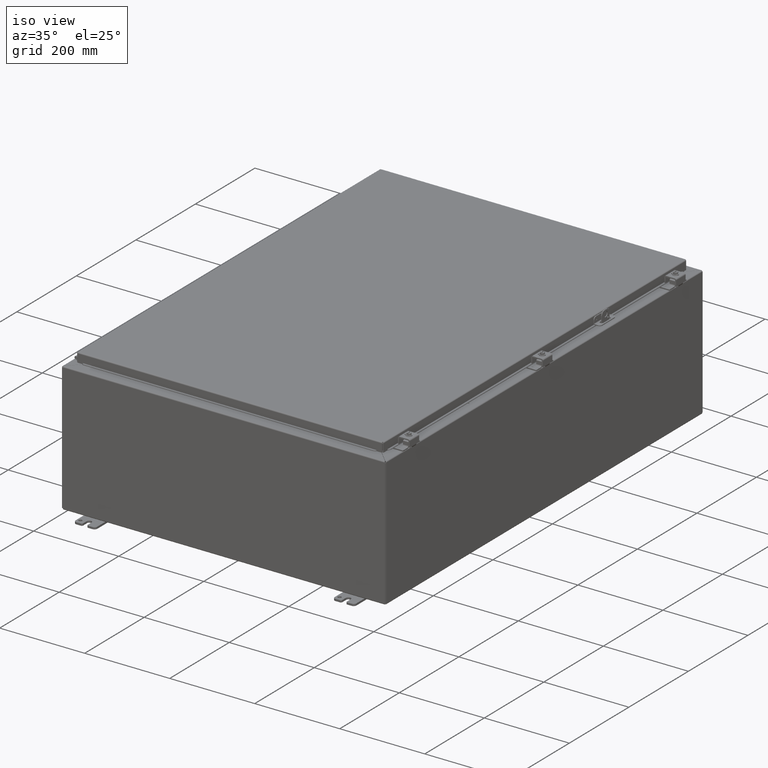
[diagram: clean part render]
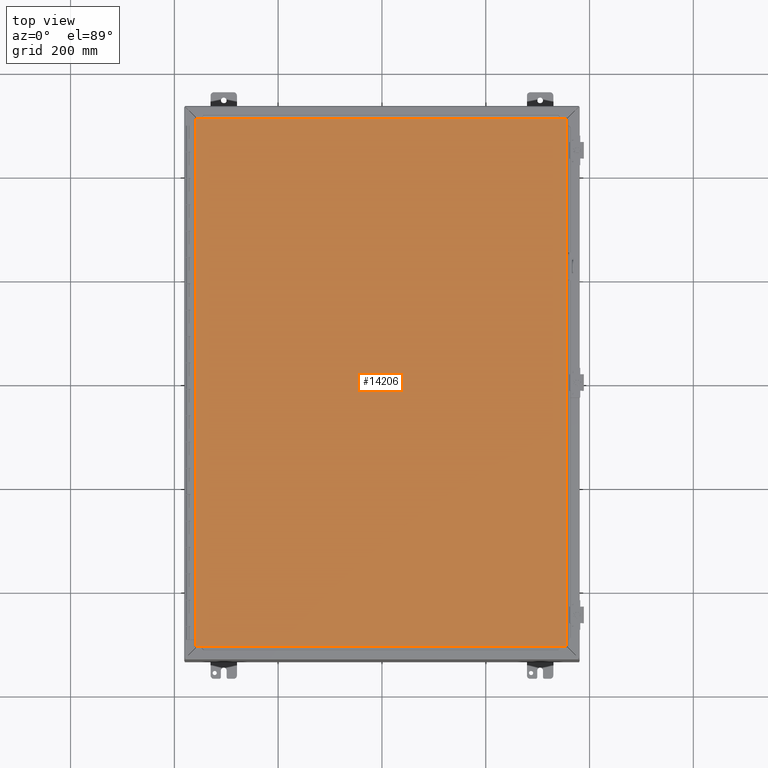
[diagram: tour spotlight — one face highlighted and labeled with its STEP entity id]
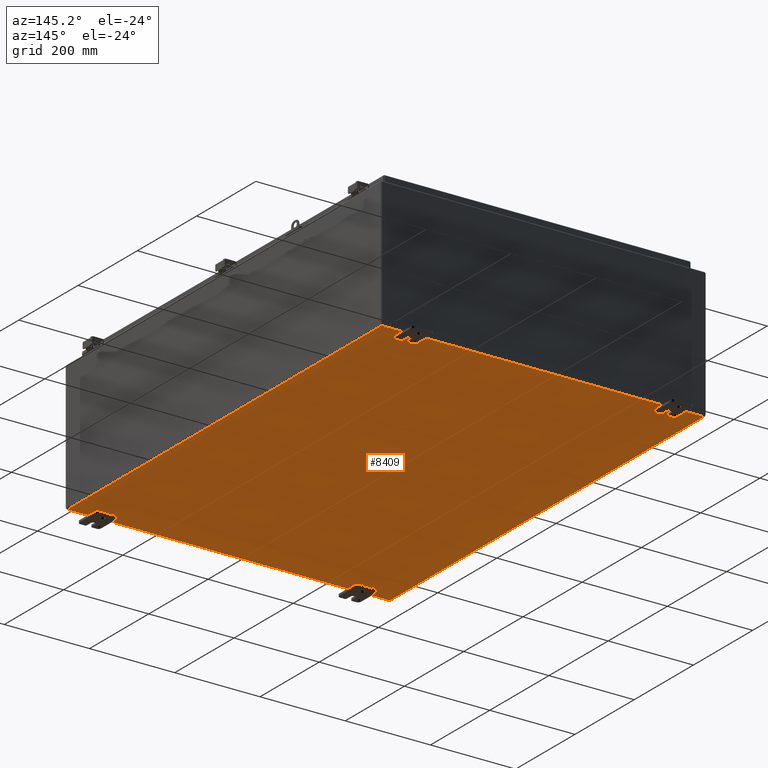
[diagram: tour spotlight — one face highlighted and labeled with its STEP entity id]
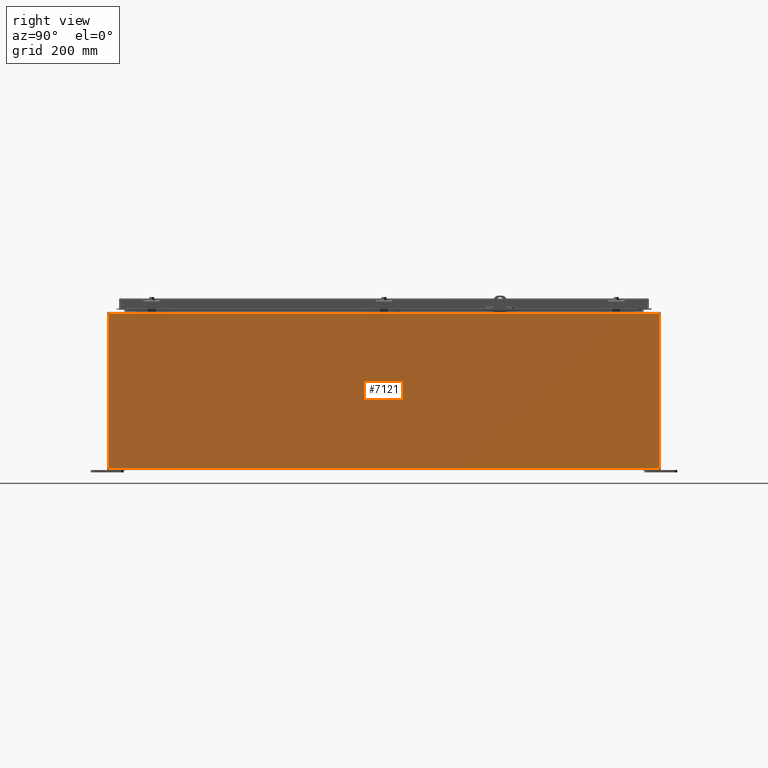
[diagram: tour spotlight — one face highlighted and labeled with its STEP entity id]
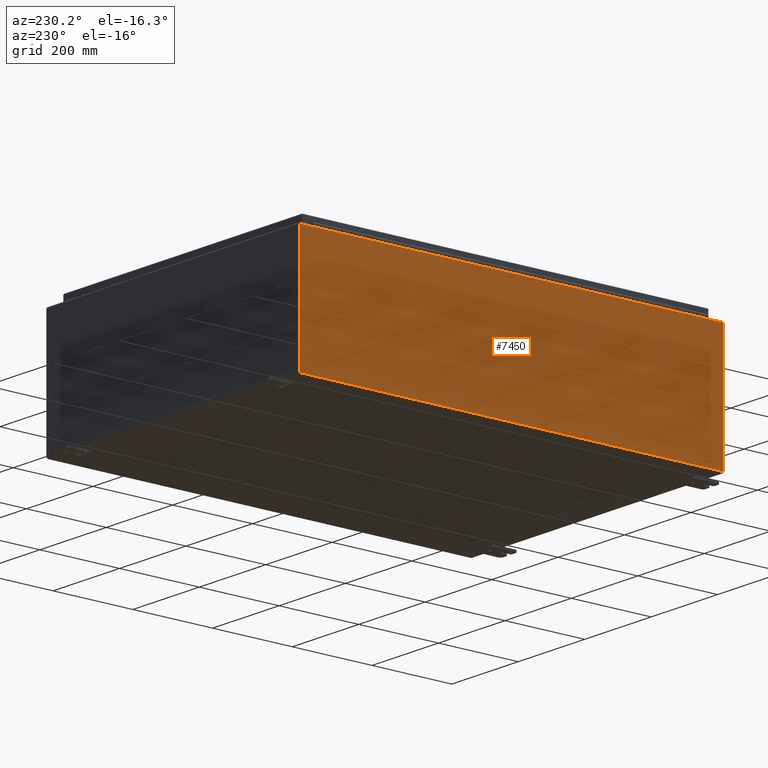
[diagram: tour spotlight — one face highlighted and labeled with its STEP entity id]
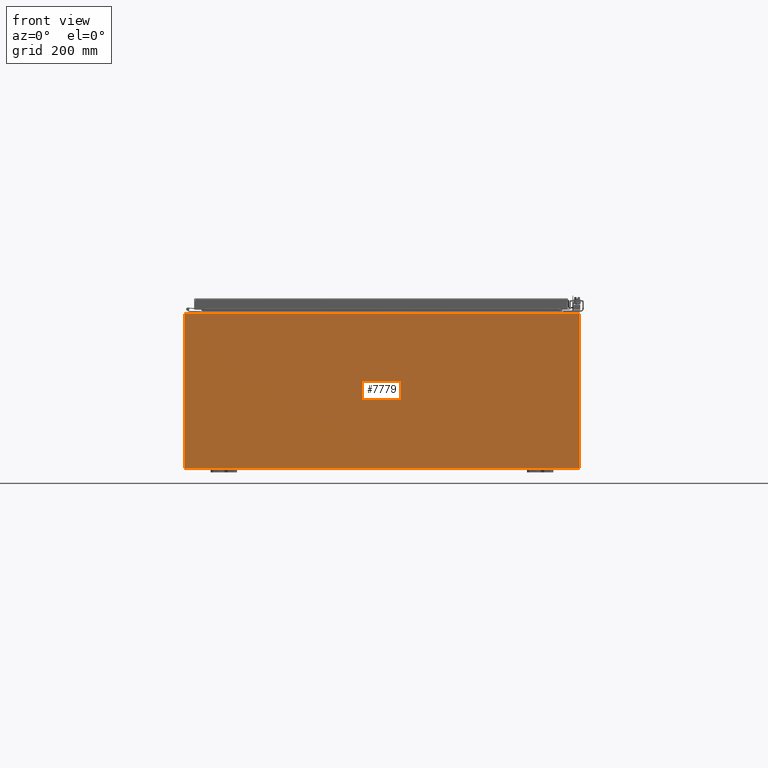
[diagram: tour spotlight — one face highlighted and labeled with its STEP entity id]
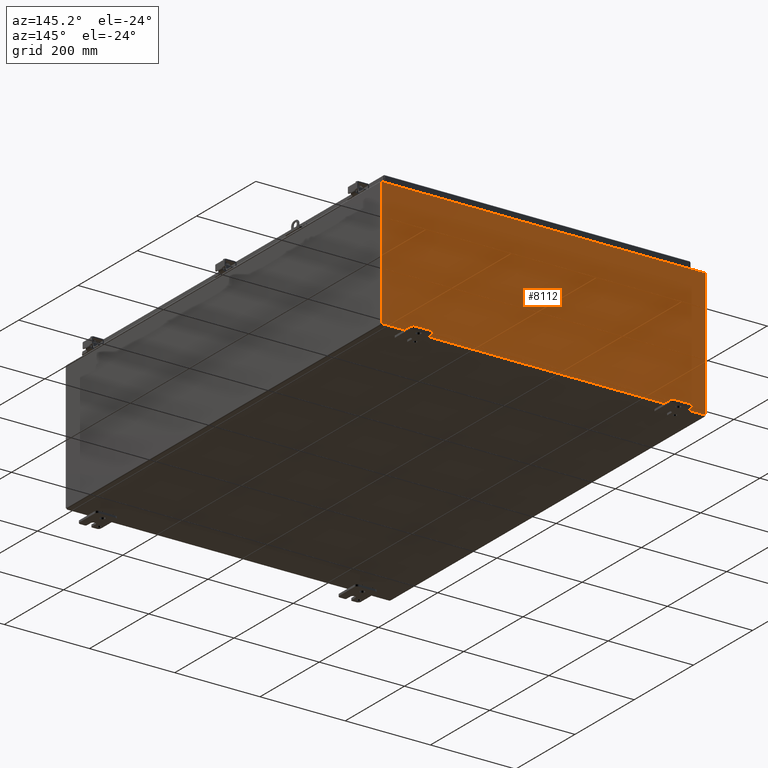
[diagram: tour spotlight — one face highlighted and labeled with its STEP entity id]
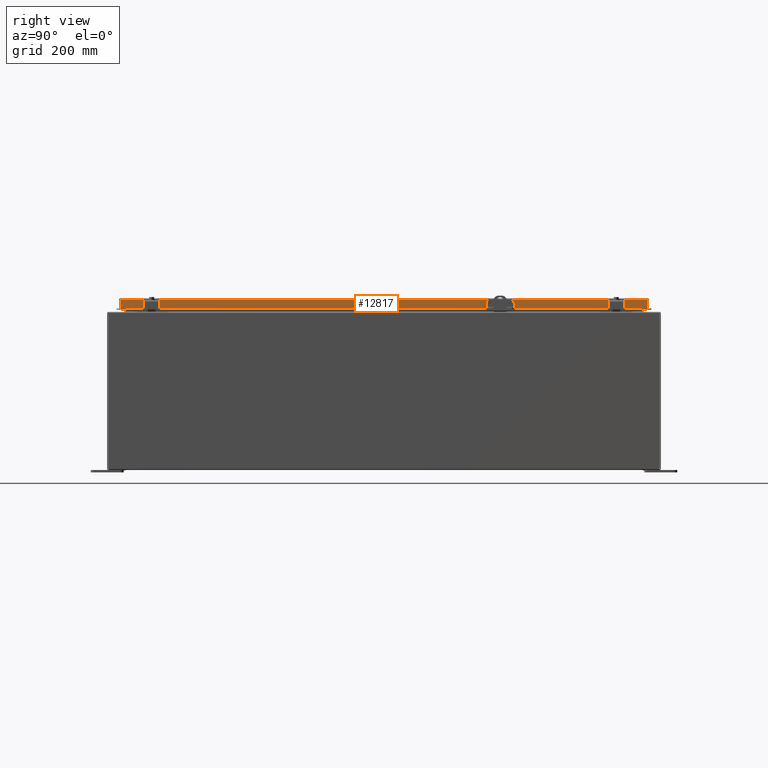
[diagram: tour spotlight — one face highlighted and labeled with its STEP entity id]
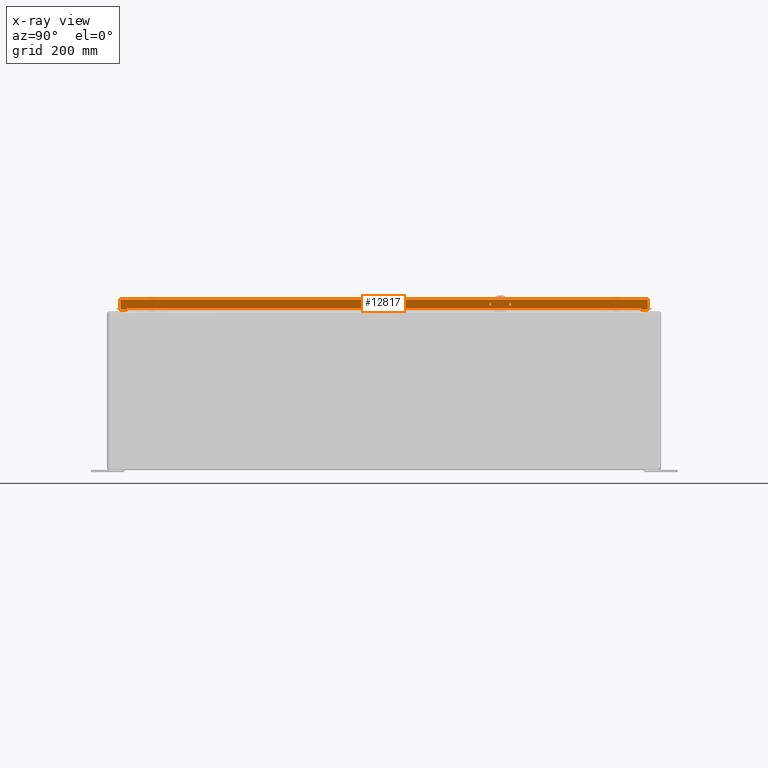
[diagram: x-ray of the same camera — body ghosted, this tour face saturated]
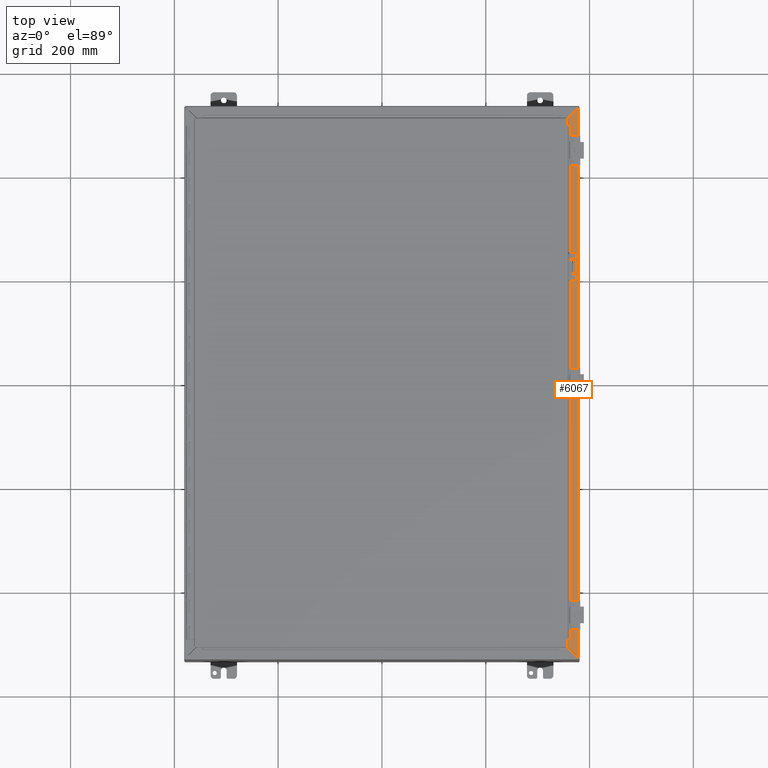
[diagram: tour spotlight — one face highlighted and labeled with its STEP entity id]
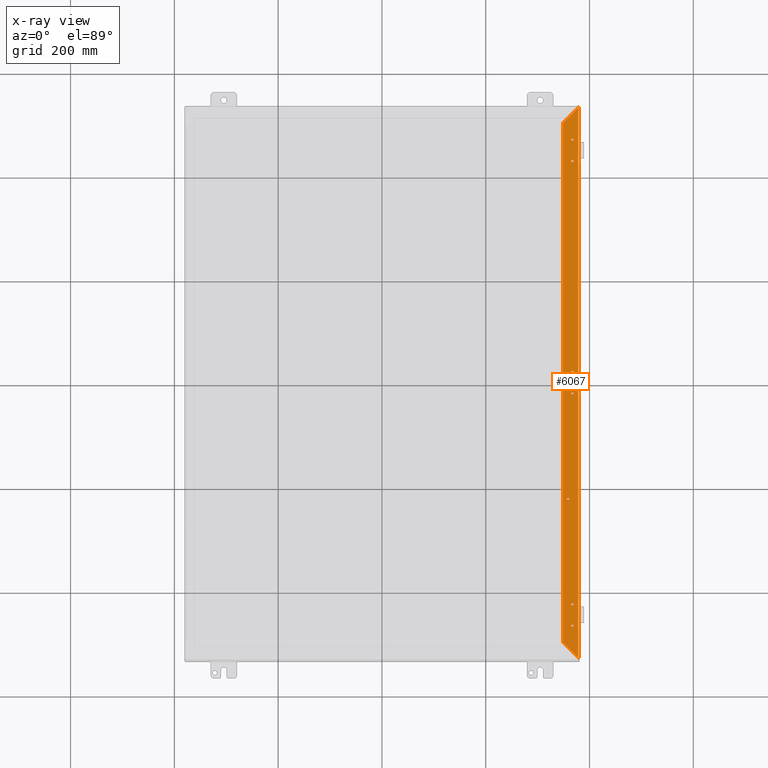
[diagram: x-ray of the same camera — body ghosted, this tour face saturated]
A machine part: a face-by-face anatomy tour. The part has 1288 B-rep faces; the first image is the clean iso view, then the 8 largest visible faces are spotlighted one at a time (largest first), each with its STEP entity span.

Face 1 — top view, entity #14206. In plain terms, the highlighted planar face has unit normal (0, -0, -1).
Definition (entity closure, byte-faithful):
#13363=CARTESIAN_POINT('',(-14.08225,-19.988500000000005,-3.278218E-017));
#13364=VERTEX_POINT('',#13363);
#13375=CARTESIAN_POINT('',(14.08225,-19.988500000000002,-1.092739E-017));
#13376=VERTEX_POINT('',#13375);
#13377=CARTESIAN_POINT('',(14.082250000000002,-19.988500000000005,0.0));
#13378=DIRECTION('',(-1.0,0.0,0.0));
#13379=VECTOR('',#13378,28.164500000000004);
#13380=LINE('',#13377,#13379);
#13381=EDGE_CURVE('',#13376,#13364,#13380,.T.);
#13497=CARTESIAN_POINT('',(-14.082250000000005,19.988500000000002,-3.278218E-017));
#13498=VERTEX_POINT('',#13497);
#13596=CARTESIAN_POINT('',(14.08225,19.988500000000002,-1.092739E-017));
#13597=VERTEX_POINT('',#13596);
#13608=CARTESIAN_POINT('',(-14.082250000000005,19.988500000000002,0.0));
#13609=DIRECTION('',(1.0,0.0,0.0));
#13610=VECTOR('',#13609,28.164500000000004);
#13611=LINE('',#13608,#13610);
#13612=EDGE_CURVE('',#13498,#13597,#13611,.T.);
#13917=CARTESIAN_POINT('',(-14.082250000000002,-19.988500000000005,0.0));
#13918=DIRECTION('',(0.0,1.0,0.0));
#13919=VECTOR('',#13918,39.977000000000011);
#13920=LINE('',#13917,#13919);
#13921=EDGE_CURVE('',#13364,#13498,#13920,.T.);
#14011=CARTESIAN_POINT('',(14.08225,19.988500000000002,0.0));
#14012=DIRECTION('',(0.0,-1.0,0.0));
#14013=VECTOR('',#14012,39.977000000000004);
#14014=LINE('',#14011,#14013);
#14015=EDGE_CURVE('',#13597,#13376,#14014,.T.);
#14195=CARTESIAN_POINT('',(0.0,-5.502907E-016,0.0));
#14196=DIRECTION('',(0.0,0.0,1.0));
#14197=DIRECTION('',(1.0,0.0,0.0));
#14198=AXIS2_PLACEMENT_3D('',#14195,#14196,#14197);
#14199=PLANE('',#14198);
#14200=ORIENTED_EDGE('',*,*,#13921,.T.);
#14201=ORIENTED_EDGE('',*,*,#13612,.T.);
#14202=ORIENTED_EDGE('',*,*,#14015,.T.);
#14203=ORIENTED_EDGE('',*,*,#13381,.T.);
#14204=EDGE_LOOP('',(#14200,#14201,#14202,#14203));
#14205=FACE_OUTER_BOUND('',#14204,.T.);
#14206=ADVANCED_FACE('',(#14205),#14199,.F.);

Face 2 — auxiliary view, entity #8409. In plain terms, the highlighted planar face has unit normal (0, 0, 1).
Definition (entity closure, byte-faithful):
#1663=CARTESIAN_POINT('',(12.424375299999996,-19.689998991866471,0.0));
#1664=VERTEX_POINT('',#1663);
#1665=CARTESIAN_POINT('',(12.484375299999996,-19.689998991866471,0.0));
#1666=DIRECTION('',(0.0,0.0,1.0));
#1667=DIRECTION('',(1.0,0.0,0.0));
#1668=AXIS2_PLACEMENT_3D('',#1665,#1666,#1667);
#1669=CIRCLE('',#1668,0.06);
#1670=EDGE_CURVE('',#1664,#1664,#1669,.T.);
#1737=CARTESIAN_POINT('',(11.455625299999998,-19.689998991866471,0.0));
#1738=VERTEX_POINT('',#1737);
#1739=CARTESIAN_POINT('',(11.515625299999998,-19.689998991866471,0.0));
#1740=DIRECTION('',(0.0,0.0,1.0));
#1741=DIRECTION('',(1.0,0.0,0.0));
#1742=AXIS2_PLACEMENT_3D('',#1739,#1740,#1741);
#1743=CIRCLE('',#1742,0.06);
#1744=EDGE_CURVE('',#1738,#1738,#1743,.T.);
#1811=CARTESIAN_POINT('',(11.781250299997273,-20.375498991872277,0.0));
#1812=VERTEX_POINT('',#1811);
#1813=CARTESIAN_POINT('',(11.841250299997274,-20.375498991872277,0.0));
#1814=DIRECTION('',(0.0,0.0,1.0));
#1815=DIRECTION('',(1.0,0.0,0.0));
#1816=AXIS2_PLACEMENT_3D('',#1813,#1814,#1815);
#1817=CIRCLE('',#1816,0.06);
#1818=EDGE_CURVE('',#1812,#1812,#1817,.T.);
#1885=CARTESIAN_POINT('',(-11.57562529999997,-19.689998991866478,0.0));
#1886=VERTEX_POINT('',#1885);
#1887=CARTESIAN_POINT('',(-11.51562529999997,-19.689998991866478,0.0));
#1888=DIRECTION('',(0.0,0.0,1.0));
#1889=DIRECTION('',(1.0,0.0,0.0));
#1890=AXIS2_PLACEMENT_3D('',#1887,#1888,#1889);
#1891=CIRCLE('',#1890,0.06);
#1892=EDGE_CURVE('',#1886,#1886,#1891,.T.);
#1959=CARTESIAN_POINT('',(-11.901250299997244,-20.375498991872284,0.0));
#1960=VERTEX_POINT('',#1959);
#1961=CARTESIAN_POINT('',(-11.841250299997244,-20.375498991872284,0.0));
#1962=DIRECTION('',(0.0,0.0,1.0));
#1963=DIRECTION('',(1.0,0.0,0.0));
#1964=AXIS2_PLACEMENT_3D('',#1961,#1962,#1963);
#1965=CIRCLE('',#1964,0.06);
#1966=EDGE_CURVE('',#1960,#1960,#1965,.T.);
#2033=CARTESIAN_POINT('',(-12.544375299999967,-19.689998991866478,0.0));
#2034=VERTEX_POINT('',#2033);
#2035=CARTESIAN_POINT('',(-12.484375299999966,-19.689998991866478,0.0));
#2036=DIRECTION('',(0.0,0.0,1.0));
#2037=DIRECTION('',(1.0,0.0,0.0));
#2038=AXIS2_PLACEMENT_3D('',#2035,#2036,#2037);
#2039=CIRCLE('',#2038,0.06);
#2040=EDGE_CURVE('',#2034,#2034,#2039,.T.);
#2107=CARTESIAN_POINT('',(-11.901250299997248,20.375498991872284,0.0));
#2108=VERTEX_POINT('',#2107);
#2109=CARTESIAN_POINT('',(-11.841250299997247,20.375498991872284,0.0));
#2110=DIRECTION('',(0.0,0.0,1.0));
#2111=DIRECTION('',(1.0,0.0,0.0));
#2112=AXIS2_PLACEMENT_3D('',#2109,#2110,#2111);
#2113=CIRCLE('',#2112,0.06);
#2114=EDGE_CURVE('',#2108,#2108,#2113,.T.);
#2181=CARTESIAN_POINT('',(-12.54437529999997,19.689998991866478,0.0));
#2182=VERTEX_POINT('',#2181);
#2183=CARTESIAN_POINT('',(-12.48437529999997,19.689998991866478,0.0));
#2184=DIRECTION('',(0.0,0.0,1.0));
#2185=DIRECTION('',(1.0,0.0,0.0));
#2186=AXIS2_PLACEMENT_3D('',#2183,#2184,#2185);
#2187=CIRCLE('',#2186,0.06);
#2188=EDGE_CURVE('',#2182,#2182,#2187,.T.);
#2255=CARTESIAN_POINT('',(-11.575625299999972,19.689998991866478,0.0));
#2256=VERTEX_POINT('',#2255);
#2257=CARTESIAN_POINT('',(-11.515625299999973,19.689998991866478,0.0));
#2258=DIRECTION('',(0.0,0.0,1.0));
#2259=DIRECTION('',(1.0,0.0,0.0));
#2260=AXIS2_PLACEMENT_3D('',#2257,#2258,#2259);
#2261=CIRCLE('',#2260,0.06);
#2262=EDGE_CURVE('',#2256,#2256,#2261,.T.);
#2329=CARTESIAN_POINT('',(11.455625299999994,19.689998991866471,0.0));
#2330=VERTEX_POINT('',#2329);
#2331=CARTESIAN_POINT('',(11.515625299999995,19.689998991866471,0.0));
#2332=DIRECTION('',(0.0,0.0,1.0));
#2333=DIRECTION('',(1.0,0.0,0.0));
#2334=AXIS2_PLACEMENT_3D('',#2331,#2332,#2333);
#2335=CIRCLE('',#2334,0.06);
#2336=EDGE_CURVE('',#2330,#2330,#2335,.T.);
#2403=CARTESIAN_POINT('',(11.78125029999727,20.375498991872277,0.0));
#2404=VERTEX_POINT('',#2403);
#2405=CARTESIAN_POINT('',(11.84125029999727,20.375498991872277,0.0));
#2406=DIRECTION('',(0.0,0.0,1.0));
#2407=DIRECTION('',(1.0,0.0,0.0));
#2408=AXIS2_PLACEMENT_3D('',#2405,#2406,#2407);
#2409=CIRCLE('',#2408,0.06);
#2410=EDGE_CURVE('',#2404,#2404,#2409,.T.);
#2477=CARTESIAN_POINT('',(12.424375299999994,19.689998991866471,0.0));
#2478=VERTEX_POINT('',#2477);
#2479=CARTESIAN_POINT('',(12.484375299999993,19.689998991866471,0.0));
#2480=DIRECTION('',(0.0,0.0,1.0));
#2481=DIRECTION('',(1.0,0.0,0.0));
#2482=AXIS2_PLACEMENT_3D('',#2479,#2480,#2481);
#2483=CIRCLE('',#2482,0.06);
#2484=EDGE_CURVE('',#2478,#2478,#2483,.T.);
#7155=CARTESIAN_POINT('',(14.894750000000004,20.882766839324358,0.0));
#7156=VERTEX_POINT('',#7155);
#7269=CARTESIAN_POINT('',(14.894750000000004,-20.882766839324372,0.0));
#7270=VERTEX_POINT('',#7269);
#7313=CARTESIAN_POINT('',(14.894750000000004,20.882766839324358,0.0));
#7314=DIRECTION('',(0.0,-1.0,0.0));
#7315=VECTOR('',#7314,41.765533678648723);
#7316=LINE('',#7313,#7315);
#7317=EDGE_CURVE('',#7156,#7270,#7316,.T.);
#7484=CARTESIAN_POINT('',(-14.894749999999995,-20.882766839324358,0.0));
#7485=VERTEX_POINT('',#7484);
#7598=CARTESIAN_POINT('',(-14.894750000000005,20.882766839324379,0.0));
#7599=VERTEX_POINT('',#7598);
#7642=CARTESIAN_POINT('',(-14.894749999999995,-20.882766839324361,0.0));
#7643=DIRECTION('',(0.0,1.0,0.0));
#7644=VECTOR('',#7643,41.765533678648737);
#7645=LINE('',#7642,#7644);
#7646=EDGE_CURVE('',#7485,#7599,#7645,.T.);
#7813=CARTESIAN_POINT('',(14.882766839324374,-20.894750000000005,0.0));
#7814=VERTEX_POINT('',#7813);
#7877=CARTESIAN_POINT('',(-14.882766839324349,-20.894750000000005,0.0));
#7878=VERTEX_POINT('',#7877);
#7892=CARTESIAN_POINT('',(14.882766839324374,-20.894750000000005,0.0));
#7893=DIRECTION('',(-1.0,0.0,0.0));
#7894=VECTOR('',#7893,29.765533678648723);
#7895=LINE('',#7892,#7894);
#7896=EDGE_CURVE('',#7814,#7878,#7895,.T.);
#8146=CARTESIAN_POINT('',(-14.882766839324379,20.894750000000005,0.0));
#8147=VERTEX_POINT('',#8146);
#8260=CARTESIAN_POINT('',(14.882766839324356,20.894750000000005,0.0));
#8261=VERTEX_POINT('',#8260);
#8304=CARTESIAN_POINT('',(-14.882766839324379,20.894750000000005,0.0));
#8305=DIRECTION('',(1.0,0.0,0.0));
#8306=VECTOR('',#8305,29.765533678648737);
#8307=LINE('',#8304,#8306);
#8308=EDGE_CURVE('',#8147,#8261,#8307,.T.);
#8321=CARTESIAN_POINT('',(-14.937891921115432,20.937891921115433,0.0));
#8322=DIRECTION('',(0.0,0.0,1.0));
#8323=DIRECTION('',(1.0,0.0,0.0));
#8324=AXIS2_PLACEMENT_3D('',#8321,#8322,#8323);
#8325=CIRCLE('',#8324,0.07);
#8326=EDGE_CURVE('',#7599,#8147,#8325,.T.);
#8340=CARTESIAN_POINT('',(0.0,2.098059E-015,0.0));
#8341=DIRECTION('',(0.0,0.0,1.0));
#8342=DIRECTION('',(1.0,0.0,0.0));
#8343=AXIS2_PLACEMENT_3D('',#8340,#8341,#8342);
#8344=PLANE('',#8343);
#8345=ORIENTED_EDGE('',*,*,#8308,.T.);
#8346=CARTESIAN_POINT('',(14.937891921115417,20.937891921115423,0.0));
#8347=DIRECTION('',(0.0,0.0,1.0));
#8348=DIRECTION('',(1.0,0.0,0.0));
#8349=AXIS2_PLACEMENT_3D('',#8346,#8347,#8348);
#8350=CIRCLE('',#8349,0.07);
#8351=EDGE_CURVE('',#8261,#7156,#8350,.T.);
#8352=ORIENTED_EDGE('',*,*,#8351,.T.);
#8353=ORIENTED_EDGE('',*,*,#7317,.T.);
#8354=CARTESIAN_POINT('',(14.937891921115432,-20.937891921115423,0.0));
#8355=DIRECTION('',(0.0,0.0,1.0));
#8356=DIRECTION('',(1.0,0.0,0.0));
#8357=AXIS2_PLACEMENT_3D('',#8354,#8355,#8356);
#8358=CIRCLE('',#8357,0.07);
#8359=EDGE_CURVE('',#7270,#7814,#8358,.T.);
#8360=ORIENTED_EDGE('',*,*,#8359,.T.);
#8361=ORIENTED_EDGE('',*,*,#7896,.T.);
#8362=CARTESIAN_POINT('',(-14.937891921115408,-20.937891921115423,0.0));
#8363=DIRECTION('',(0.0,0.0,1.0));
#8364=DIRECTION('',(1.0,0.0,0.0));
#8365=AXIS2_PLACEMENT_3D('',#8362,#8363,#8364);
#8366=CIRCLE('',#8365,0.07);
#8367=EDGE_CURVE('',#7878,#7485,#8366,.T.);
#8368=ORIENTED_EDGE('',*,*,#8367,.T.);
#8369=ORIENTED_EDGE('',*,*,#7646,.T.);
#8370=ORIENTED_EDGE('',*,*,#8326,.T.);
#8371=EDGE_LOOP('',(#8345,#8352,#8353,#8360,#8361,#8368,#8369,#8370));
#8372=FACE_OUTER_BOUND('',#8371,.T.);
#8373=ORIENTED_EDGE('',*,*,#1670,.T.);
#8374=EDGE_LOOP('',(#8373));
#8375=FACE_BOUND('',#8374,.T.);
#8376=ORIENTED_EDGE('',*,*,#1744,.T.);
#8377=EDGE_LOOP('',(#8376));
#8378=FACE_BOUND('',#8377,.T.);
#8379=ORIENTED_EDGE('',*,*,#1818,.T.);
#8380=EDGE_LOOP('',(#8379));
#8381=FACE_BOUND('',#8380,.T.);
#8382=ORIENTED_EDGE('',*,*,#1892,.T.);
#8383=EDGE_LOOP('',(#8382));
#8384=FACE_BOUND('',#8383,.T.);
#8385=ORIENTED_EDGE('',*,*,#1966,.T.);
#8386=EDGE_LOOP('',(#8385));
#8387=FACE_BOUND('',#8386,.T.);
#8388=ORIENTED_EDGE('',*,*,#2040,.T.);
#8389=EDGE_LOOP('',(#8388));
#8390=FACE_BOUND('',#8389,.T.);
#8391=ORIENTED_EDGE('',*,*,#2114,.T.);
#8392=EDGE_LOOP('',(#8391));
#8393=FACE_BOUND('',#8392,.T.);
#8394=ORIENTED_EDGE('',*,*,#2188,.T.);
#8395=EDGE_LOOP('',(#8394));
#8396=FACE_BOUND('',#8395,.T.);
#8397=ORIENTED_EDGE('',*,*,#2262,.T.);
#8398=EDGE_LOOP('',(#8397));
#8399=FACE_BOUND('',#8398,.T.);
#8400=ORIENTED_EDGE('',*,*,#2336,.T.);
#8401=EDGE_LOOP('',(#8400));
#8402=FACE_BOUND('',#8401,.T.);
#8403=ORIENTED_EDGE('',*,*,#2410,.T.);
#8404=EDGE_LOOP('',(#8403));
#8405=FACE_BOUND('',#8404,.T.);
#8406=ORIENTED_EDGE('',*,*,#2484,.T.);
#8407=EDGE_LOOP('',(#8406));
#8408=FACE_BOUND('',#8407,.T.);
#8409=ADVANCED_FACE('',(#8372,#8375,#8378,#8381,#8384,#8387,#8390,#8393,#8396,#8399,#8402,#8405,#8408),#8344,.F.);

Face 3 — right view, entity #7121. In plain terms, the highlighted planar face has unit normal (-1, 0, 0).
Definition (entity closure, byte-faithful):
#6126=CARTESIAN_POINT('',(15.000000000000055,20.914951456544024,11.89475));
#6127=VERTEX_POINT('',#6126);
#6159=CARTESIAN_POINT('',(15.000000000000066,-20.914951456544028,11.894750000000014));
#6160=VERTEX_POINT('',#6159);
#6174=CARTESIAN_POINT('',(15.000000000000059,20.914951456544024,11.894749999999998));
#6175=DIRECTION('',(0.0,-1.0,0.0));
#6176=VECTOR('',#6175,41.829902913088056);
#6177=LINE('',#6174,#6176);
#6178=EDGE_CURVE('',#6127,#6160,#6177,.T.);
#6667=CARTESIAN_POINT('',(15.000000000000069,-20.921000000000006,11.894750000000014));
#6668=VERTEX_POINT('',#6667);
#6675=CARTESIAN_POINT('',(15.000000000000068,-20.914951456544031,11.894750000000013));
#6676=DIRECTION('',(0.0,-1.0,0.0));
#6677=VECTOR('',#6676,0.006048543455968);
#6678=LINE('',#6675,#6677);
#6679=EDGE_CURVE('',#6160,#6668,#6678,.T.);
#6938=CARTESIAN_POINT('',(15.000000000000057,20.920999999999999,11.89475));
#6939=VERTEX_POINT('',#6938);
#6940=CARTESIAN_POINT('',(15.000000000000059,20.920999999999999,11.894749999999998));
#6941=DIRECTION('',(0.0,-1.0,0.0));
#6942=VECTOR('',#6941,0.006048543455975);
#6943=LINE('',#6940,#6942);
#6944=EDGE_CURVE('',#6939,#6127,#6943,.T.);
#6969=CARTESIAN_POINT('',(14.999999999999996,20.921000000000003,0.1300393897878));
#6970=VERTEX_POINT('',#6969);
#6971=CARTESIAN_POINT('',(14.999999999999453,20.921000000000006,11.89475));
#6972=DIRECTION('',(0.0,0.0,-1.0));
#6973=VECTOR('',#6972,11.7647106102122);
#6974=LINE('',#6971,#6973);
#6975=EDGE_CURVE('',#6939,#6970,#6974,.T.);
#7009=CARTESIAN_POINT('',(14.999999999999998,-20.882766839324365,0.105249999999998));
#7010=VERTEX_POINT('',#7009);
#7017=CARTESIAN_POINT('',(14.999999999999998,-20.921000000000003,0.130039389787809));
#7018=VERTEX_POINT('',#7017);
#7019=CARTESIAN_POINT('',(14.999999999999998,-20.937891921115426,0.062108078884587));
#7020=DIRECTION('',(-1.0,0.0,0.0));
#7021=DIRECTION('',(0.0,0.0,1.0));
#7022=AXIS2_PLACEMENT_3D('',#7019,#7020,#7021);
#7023=CIRCLE('',#7022,0.07);
#7024=EDGE_CURVE('',#7018,#7010,#7023,.T.);
#7088=CARTESIAN_POINT('',(15.00000000000003,-7.416651E-016,6.009483078884587));
#7089=DIRECTION('',(-1.0,0.0,0.0));
#7090=DIRECTION('',(0.0,0.0,1.0));
#7091=AXIS2_PLACEMENT_3D('',#7088,#7089,#7090);
#7092=PLANE('',#7091);
#7093=ORIENTED_EDGE('',*,*,#6944,.T.);
#7094=ORIENTED_EDGE('',*,*,#6178,.T.);
#7095=ORIENTED_EDGE('',*,*,#6679,.T.);
#7096=CARTESIAN_POINT('',(15.000000000000004,-20.921000000000003,0.130039389787809));
#7097=DIRECTION('',(0.0,0.0,1.0));
#7098=VECTOR('',#7097,11.764710610212205);
#7099=LINE('',#7096,#7098);
#7100=EDGE_CURVE('',#7018,#6668,#7099,.T.);
#7101=ORIENTED_EDGE('',*,*,#7100,.F.);
#7102=ORIENTED_EDGE('',*,*,#7024,.T.);
#7103=CARTESIAN_POINT('',(14.999999999999996,20.882766839324365,0.105249999999998));
#7104=VERTEX_POINT('',#7103);
#7105=CARTESIAN_POINT('',(15.000000000000002,-20.882766839324365,0.105249999999998));
#7106=DIRECTION('',(0.0,1.0,0.0));
#7107=VECTOR('',#7106,41.76553367864873);
#7108=LINE('',#7105,#7107);
#7109=EDGE_CURVE('',#7010,#7104,#7108,.T.);
#7110=ORIENTED_EDGE('',*,*,#7109,.T.);
#7111=CARTESIAN_POINT('',(14.999999999999996,20.937891921115423,0.062108078884576));
#7112=DIRECTION('',(-1.0,0.0,0.0));
#7113=DIRECTION('',(0.0,0.0,1.0));
#7114=AXIS2_PLACEMENT_3D('',#7111,#7112,#7113);
#7115=CIRCLE('',#7114,0.07);
#7116=EDGE_CURVE('',#7104,#6970,#7115,.T.);
#7117=ORIENTED_EDGE('',*,*,#7116,.T.);
#7118=ORIENTED_EDGE('',*,*,#6975,.F.);
#7119=EDGE_LOOP('',(#7093,#7094,#7095,#7101,#7102,#7110,#7117,#7118));
#7120=FACE_OUTER_BOUND('',#7119,.T.);
#7121=ADVANCED_FACE('',(#7120),#7092,.F.);

Face 4 — auxiliary view, entity #7450. In plain terms, the highlighted planar face has unit normal (1, 0, 0).
Definition (entity closure, byte-faithful):
#5889=CARTESIAN_POINT('',(-15.000000000000052,-20.914951456544035,11.894750000000004));
#5890=VERTEX_POINT('',#5889);
#5922=CARTESIAN_POINT('',(-15.000000000000066,20.914951456544031,11.894750000000014));
#5923=VERTEX_POINT('',#5922);
#5937=CARTESIAN_POINT('',(-15.000000000000052,-20.914951456544038,11.894750000000004));
#5938=DIRECTION('',(0.0,1.0,0.0));
#5939=VECTOR('',#5938,41.829902913088063);
#5940=LINE('',#5937,#5939);
#5941=EDGE_CURVE('',#5890,#5923,#5940,.T.);
#6636=CARTESIAN_POINT('',(-15.000000000000069,20.921000000000006,11.894750000000014));
#6637=VERTEX_POINT('',#6636);
#6644=CARTESIAN_POINT('',(-15.000000000000064,20.914951456544028,11.894750000000016));
#6645=DIRECTION('',(0.0,1.0,0.0));
#6646=VECTOR('',#6645,0.006048543455979);
#6647=LINE('',#6644,#6646);
#6648=EDGE_CURVE('',#5923,#6637,#6647,.T.);
#6814=CARTESIAN_POINT('',(-15.000000000000057,-20.920999999999999,11.894750000000002));
#6815=VERTEX_POINT('',#6814);
#6816=CARTESIAN_POINT('',(-15.000000000000052,-20.920999999999999,11.894750000000004));
#6817=DIRECTION('',(0.0,1.0,0.0));
#6818=VECTOR('',#6817,0.006048543455961);
#6819=LINE('',#6816,#6818);
#6820=EDGE_CURVE('',#6815,#5890,#6819,.T.);
#6845=CARTESIAN_POINT('',(-14.999999999999989,-20.921000000000006,0.130039389787803));
#6846=VERTEX_POINT('',#6845);
#6847=CARTESIAN_POINT('',(-15.000000000000052,-20.92100000000001,11.894750000000004));
#6848=DIRECTION('',(0.0,0.0,-1.0));
#6849=VECTOR('',#6848,11.7647106102122);
#6850=LINE('',#6847,#6849);
#6851=EDGE_CURVE('',#6815,#6846,#6850,.T.);
#7338=CARTESIAN_POINT('',(-14.999999999999998,20.882766839324365,0.105250000000001));
#7339=VERTEX_POINT('',#7338);
#7346=CARTESIAN_POINT('',(-15.000000000000002,20.920999999999999,0.130039389787811));
#7347=VERTEX_POINT('',#7346);
#7348=CARTESIAN_POINT('',(-14.999999999999998,20.937891921115433,0.06210807888459));
#7349=DIRECTION('',(1.0,0.0,0.0));
#7350=DIRECTION('',(0.0,0.0,-1.0));
#7351=AXIS2_PLACEMENT_3D('',#7348,#7349,#7350);
#7352=CIRCLE('',#7351,0.07);
#7353=EDGE_CURVE('',#7347,#7339,#7352,.T.);
#7417=CARTESIAN_POINT('',(-15.000000000000027,-2.628164E-015,6.009483078884587));
#7418=DIRECTION('',(1.0,0.0,0.0));
#7419=DIRECTION('',(0.0,0.0,-1.0));
#7420=AXIS2_PLACEMENT_3D('',#7417,#7418,#7419);
#7421=PLANE('',#7420);
#7422=ORIENTED_EDGE('',*,*,#6820,.T.);
#7423=ORIENTED_EDGE('',*,*,#5941,.T.);
#7424=ORIENTED_EDGE('',*,*,#6648,.T.);
#7425=CARTESIAN_POINT('',(-14.999999999999998,20.921000000000003,0.130039389787811));
#7426=DIRECTION('',(0.0,0.0,1.0));
#7427=VECTOR('',#7426,11.764710610212203);
#7428=LINE('',#7425,#7427);
#7429=EDGE_CURVE('',#7347,#6637,#7428,.T.);
#7430=ORIENTED_EDGE('',*,*,#7429,.F.);
#7431=ORIENTED_EDGE('',*,*,#7353,.T.);
#7432=CARTESIAN_POINT('',(-14.999999999999988,-20.882766839324365,0.105250000000001));
#7433=VERTEX_POINT('',#7432);
#7434=CARTESIAN_POINT('',(-15.000000000000002,20.882766839324365,0.105250000000001));
#7435=DIRECTION('',(0.0,-1.0,0.0));
#7436=VECTOR('',#7435,41.765533678648737);
#7437=LINE('',#7434,#7436);
#7438=EDGE_CURVE('',#7339,#7433,#7437,.T.);
#7439=ORIENTED_EDGE('',*,*,#7438,.T.);
#7440=CARTESIAN_POINT('',(-14.999999999999988,-20.937891921115423,0.062108078884578));
#7441=DIRECTION('',(1.0,0.0,0.0));
#7442=DIRECTION('',(0.0,0.0,-1.0));
#7443=AXIS2_PLACEMENT_3D('',#7440,#7441,#7442);
#7444=CIRCLE('',#7443,0.07);
#7445=EDGE_CURVE('',#7433,#6846,#7444,.T.);
#7446=ORIENTED_EDGE('',*,*,#7445,.T.);
#7447=ORIENTED_EDGE('',*,*,#6851,.F.);
#7448=EDGE_LOOP('',(#7422,#7423,#7424,#7430,#7431,#7439,#7446,#7447));
#7449=FACE_OUTER_BOUND('',#7448,.T.);
#7450=ADVANCED_FACE('',(#7449),#7421,.F.);

Face 5 — front view, entity #7779. In plain terms, the highlighted planar face has unit normal (0, 1, 0).
Definition (entity closure, byte-faithful):
#6321=CARTESIAN_POINT('',(14.914951456544026,-21.00000000000006,11.894750000000005));
#6322=VERTEX_POINT('',#6321);
#6354=CARTESIAN_POINT('',(-14.914951456544014,-21.000000000000071,11.894750000000002));
#6355=VERTEX_POINT('',#6354);
#6369=CARTESIAN_POINT('',(14.914951456544028,-21.000000000000068,11.894750000000005));
#6370=DIRECTION('',(-1.0,0.0,0.0));
#6371=VECTOR('',#6370,29.829902913088041);
#6372=LINE('',#6369,#6371);
#6373=EDGE_CURVE('',#6322,#6355,#6372,.T.);
#6698=CARTESIAN_POINT('',(-14.962999999999997,-21.000000000000068,11.894750000000002));
#6699=VERTEX_POINT('',#6698);
#6706=CARTESIAN_POINT('',(-14.914951456544012,-21.000000000000078,11.894750000000004));
#6707=DIRECTION('',(-1.0,0.0,0.0));
#6708=VECTOR('',#6707,0.048048543455987);
#6709=LINE('',#6706,#6708);
#6710=EDGE_CURVE('',#6355,#6699,#6709,.T.);
#6876=CARTESIAN_POINT('',(14.963000000000001,-21.000000000000057,11.894750000000005));
#6877=VERTEX_POINT('',#6876);
#6878=CARTESIAN_POINT('',(14.963000000000001,-21.000000000000068,11.894750000000005));
#6879=DIRECTION('',(-1.0,0.0,0.0));
#6880=VECTOR('',#6879,0.048048543455973);
#6881=LINE('',#6878,#6880);
#6882=EDGE_CURVE('',#6877,#6322,#6881,.T.);
#6907=CARTESIAN_POINT('',(14.962999999999996,-21.000000000000007,0.127450135591774));
#6908=VERTEX_POINT('',#6907);
#6909=CARTESIAN_POINT('',(14.962999999999996,-20.99999999999946,11.894750000000007));
#6910=DIRECTION('',(0.0,0.0,-1.0));
#6911=VECTOR('',#6910,11.767299864408233);
#6912=LINE('',#6909,#6911);
#6913=EDGE_CURVE('',#6877,#6908,#6912,.T.);
#7711=CARTESIAN_POINT('',(-14.882766839324363,-21.000000000000007,0.105250000000001));
#7712=VERTEX_POINT('',#7711);
#7719=CARTESIAN_POINT('',(-14.963000000000003,-21.000000000000007,0.127450135591766));
#7720=VERTEX_POINT('',#7719);
#7721=CARTESIAN_POINT('',(-14.937891921115417,-21.000000000000007,0.062108078884578));
#7722=DIRECTION('',(0.0,1.0,0.0));
#7723=DIRECTION('',(1.0,0.0,0.0));
#7724=AXIS2_PLACEMENT_3D('',#7721,#7722,#7723);
#7725=CIRCLE('',#7724,0.07);
#7726=EDGE_CURVE('',#7720,#7712,#7725,.T.);
#7746=CARTESIAN_POINT('',(-2.646843E-015,-21.000000000000039,6.009483078884579));
#7747=DIRECTION('',(0.0,1.0,0.0));
#7748=DIRECTION('',(1.0,0.0,0.0));
#7749=AXIS2_PLACEMENT_3D('',#7746,#7747,#7748);
#7750=PLANE('',#7749);
#7751=ORIENTED_EDGE('',*,*,#6882,.T.);
#7752=ORIENTED_EDGE('',*,*,#6373,.T.);
#7753=ORIENTED_EDGE('',*,*,#6710,.T.);
#7754=CARTESIAN_POINT('',(-14.962999999999997,-21.000000000000011,0.127450135591766));
#7755=DIRECTION('',(0.0,0.0,1.0));
#7756=VECTOR('',#7755,11.767299864408237);
#7757=LINE('',#7754,#7756);
#7758=EDGE_CURVE('',#7720,#6699,#7757,.T.);
#7759=ORIENTED_EDGE('',*,*,#7758,.F.);
#7760=ORIENTED_EDGE('',*,*,#7726,.T.);
#7761=CARTESIAN_POINT('',(14.882766839324374,-21.000000000000007,0.105250000000001));
#7762=VERTEX_POINT('',#7761);
#7763=CARTESIAN_POINT('',(-14.882766839324363,-21.000000000000011,0.105250000000001));
#7764=DIRECTION('',(1.0,0.0,0.0));
#7765=VECTOR('',#7764,29.765533678648737);
#7766=LINE('',#7763,#7765);
#7767=EDGE_CURVE('',#7712,#7762,#7766,.T.);
#7768=ORIENTED_EDGE('',*,*,#7767,.T.);
#7769=CARTESIAN_POINT('',(14.937891921115432,-21.000000000000007,0.062108078884578));
#7770=DIRECTION('',(0.0,1.0,0.0));
#7771=DIRECTION('',(1.0,0.0,0.0));
#7772=AXIS2_PLACEMENT_3D('',#7769,#7770,#7771);
#7773=CIRCLE('',#7772,0.07);
#7774=EDGE_CURVE('',#7762,#6908,#7773,.T.);
#7775=ORIENTED_EDGE('',*,*,#7774,.T.);
#7776=ORIENTED_EDGE('',*,*,#6913,.F.);
#7777=EDGE_LOOP('',(#7751,#7752,#7753,#7759,#7760,#7768,#7775,#7776));
#7778=FACE_OUTER_BOUND('',#7777,.T.);
#7779=ADVANCED_FACE('',(#7778),#7750,.F.);

Face 6 — auxiliary view, entity #8112. In plain terms, the highlighted planar face has unit normal (0, -1, 0).
Definition (entity closure, byte-faithful):
#6512=CARTESIAN_POINT('',(-14.914951456544024,21.00000000000006,11.894750000000002));
#6513=VERTEX_POINT('',#6512);
#6542=CARTESIAN_POINT('',(14.914951456544015,21.00000000000006,11.894750000000002));
#6543=VERTEX_POINT('',#6542);
#6557=CARTESIAN_POINT('',(-14.914951456544024,21.000000000000068,11.894750000000002));
#6558=DIRECTION('',(1.0,0.0,0.0));
#6559=VECTOR('',#6558,29.829902913088041);
#6560=LINE('',#6557,#6559);
#6561=EDGE_CURVE('',#6513,#6543,#6560,.T.);
#6729=CARTESIAN_POINT('',(14.963000000000006,21.000000000000064,11.894750000000002));
#6730=VERTEX_POINT('',#6729);
#6737=CARTESIAN_POINT('',(14.914951456544015,21.000000000000068,11.894750000000002));
#6738=DIRECTION('',(1.0,0.0,0.0));
#6739=VECTOR('',#6738,0.048048543455991);
#6740=LINE('',#6737,#6739);
#6741=EDGE_CURVE('',#6543,#6730,#6740,.T.);
#6752=CARTESIAN_POINT('',(-14.963000000000003,21.000000000000064,11.894750000000002));
#6753=VERTEX_POINT('',#6752);
#6754=CARTESIAN_POINT('',(-14.963000000000005,21.000000000000068,11.894750000000002));
#6755=DIRECTION('',(1.0,0.0,0.0));
#6756=VECTOR('',#6755,0.04804854345598);
#6757=LINE('',#6754,#6756);
#6758=EDGE_CURVE('',#6753,#6513,#6757,.T.);
#6783=CARTESIAN_POINT('',(-14.962999999999997,21.000000000000007,0.127450135591771));
#6784=VERTEX_POINT('',#6783);
#6785=CARTESIAN_POINT('',(-14.962999999999997,21.000000000000071,11.894750000000004));
#6786=DIRECTION('',(0.0,0.0,-1.0));
#6787=VECTOR('',#6786,11.767299864408232);
#6788=LINE('',#6785,#6787);
#6789=EDGE_CURVE('',#6753,#6784,#6788,.T.);
#7996=CARTESIAN_POINT('',(14.882766839324368,21.000000000000007,0.105250000000001));
#7997=VERTEX_POINT('',#7996);
#8004=CARTESIAN_POINT('',(14.963000000000012,21.000000000000007,0.127450135591766));
#8005=VERTEX_POINT('',#8004);
#8006=CARTESIAN_POINT('',(14.937891921115423,21.000000000000007,0.062108078884578));
#8007=DIRECTION('',(0.0,-1.0,0.0));
#8008=DIRECTION('',(1.0,0.0,0.0));
#8009=AXIS2_PLACEMENT_3D('',#8006,#8007,#8008);
#8010=CIRCLE('',#8009,0.07);
#8011=EDGE_CURVE('',#8005,#7997,#8010,.T.);
#8079=CARTESIAN_POINT('',(5.245148E-015,21.000000000000036,6.009483078884579));
#8080=DIRECTION('',(0.0,-1.0,0.0));
#8081=DIRECTION('',(1.0,0.0,0.0));
#8082=AXIS2_PLACEMENT_3D('',#8079,#8080,#8081);
#8083=PLANE('',#8082);
#8084=ORIENTED_EDGE('',*,*,#6758,.T.);
#8085=ORIENTED_EDGE('',*,*,#6561,.T.);
#8086=ORIENTED_EDGE('',*,*,#6741,.T.);
#8087=CARTESIAN_POINT('',(14.963000000000006,21.000000000000007,0.127450135591766));
#8088=DIRECTION('',(0.0,0.0,1.0));
#8089=VECTOR('',#8088,11.767299864408239);
#8090=LINE('',#8087,#8089);
#8091=EDGE_CURVE('',#8005,#6730,#8090,.T.);
#8092=ORIENTED_EDGE('',*,*,#8091,.F.);
#8093=ORIENTED_EDGE('',*,*,#8011,.T.);
#8094=CARTESIAN_POINT('',(-14.88276683932437,21.000000000000007,0.105250000000001));
#8095=VERTEX_POINT('',#8094);
#8096=CARTESIAN_POINT('',(14.88276683932437,21.000000000000007,0.105250000000001));
#8097=DIRECTION('',(-1.0,0.0,0.0));
#8098=VECTOR('',#8097,29.765533678648737);
#8099=LINE('',#8096,#8098);
#8100=EDGE_CURVE('',#7997,#8095,#8099,.T.);
#8101=ORIENTED_EDGE('',*,*,#8100,.T.);
#8102=CARTESIAN_POINT('',(-14.937891921115426,21.000000000000007,0.062108078884578));
#8103=DIRECTION('',(0.0,-1.0,0.0));
#8104=DIRECTION('',(1.0,0.0,0.0));
#8105=AXIS2_PLACEMENT_3D('',#8102,#8103,#8104);
#8106=CIRCLE('',#8105,0.07);
#8107=EDGE_CURVE('',#8095,#6784,#8106,.T.);
#8108=ORIENTED_EDGE('',*,*,#8107,.T.);
#8109=ORIENTED_EDGE('',*,*,#6789,.F.);
#8110=EDGE_LOOP('',(#8084,#8085,#8086,#8092,#8093,#8101,#8108,#8109));
#8111=FACE_OUTER_BOUND('',#8110,.T.);
#8112=ADVANCED_FACE('',(#8111),#8083,.F.);

Face 7 — right view, entity #12817. An x-ray twin of the same camera follows (body ghosted, this face saturated) — the face is partly hidden behind the body. In plain terms, the highlighted planar face has unit normal (-1, -0, -0).
Definition (entity closure, byte-faithful):
#10876=CARTESIAN_POINT('',(14.187500000000007,-9.625000000000002,0.497500000000001));
#10877=VERTEX_POINT('',#10876);
#10884=CARTESIAN_POINT('',(14.187500000000007,-9.625000000000002,0.434500000000001));
#10885=VERTEX_POINT('',#10884);
#10886=CARTESIAN_POINT('',(14.187500000000005,-9.625000000000002,0.434500000000001));
#10887=DIRECTION('',(0.0,0.0,1.0));
#10888=VECTOR('',#10887,0.063);
#10889=LINE('',#10886,#10888);
#10890=EDGE_CURVE('',#10885,#10877,#10889,.T.);
#10916=CARTESIAN_POINT('',(14.187500000000007,-9.500000000000002,0.434500000000001));
#10917=VERTEX_POINT('',#10916);
#10918=CARTESIAN_POINT('',(14.187500000000002,-9.5625,0.434500000000001));
#10919=DIRECTION('',(-1.0,0.0,0.0));
#10920=DIRECTION('',(0.0,-1.0,0.0));
#10921=AXIS2_PLACEMENT_3D('',#10918,#10919,#10920);
#10922=CIRCLE('',#10921,0.0625);
#10923=EDGE_CURVE('',#10917,#10885,#10922,.T.);
#10948=CARTESIAN_POINT('',(14.187500000000007,-9.500000000000002,0.497500000000001));
#10949=VERTEX_POINT('',#10948);
#10950=CARTESIAN_POINT('',(14.187500000000005,-9.500000000000002,0.497500000000001));
#10951=DIRECTION('',(0.0,0.0,-1.0));
#10952=VECTOR('',#10951,0.063);
#10953=LINE('',#10950,#10952);
#10954=EDGE_CURVE('',#10949,#10917,#10953,.T.);
#10978=CARTESIAN_POINT('',(14.187500000000002,-9.5625,0.497500000000001));
#10979=DIRECTION('',(-1.0,0.0,0.0));
#10980=DIRECTION('',(0.0,1.0,0.0));
#10981=AXIS2_PLACEMENT_3D('',#10978,#10979,#10980);
#10982=CIRCLE('',#10981,0.0625);
#10983=EDGE_CURVE('',#10877,#10949,#10982,.T.);
#11016=CARTESIAN_POINT('',(14.187500000000005,-8.125,0.497500000000001));
#11017=VERTEX_POINT('',#11016);
#11024=CARTESIAN_POINT('',(14.187500000000005,-8.125,0.434500000000001));
#11025=VERTEX_POINT('',#11024);
#11026=CARTESIAN_POINT('',(14.187500000000005,-8.125,0.434500000000001));
#11027=DIRECTION('',(0.0,0.0,1.0));
#11028=VECTOR('',#11027,0.063);
#11029=LINE('',#11026,#11028);
#11030=EDGE_CURVE('',#11025,#11017,#11029,.T.);
#11056=CARTESIAN_POINT('',(14.187500000000005,-8.0,0.434500000000001));
#11057=VERTEX_POINT('',#11056);
#11058=CARTESIAN_POINT('',(14.187500000000002,-8.0625,0.434500000000001));
#11059=DIRECTION('',(-1.0,0.0,0.0));
#11060=DIRECTION('',(0.0,-1.0,0.0));
#11061=AXIS2_PLACEMENT_3D('',#11058,#11059,#11060);
#11062=CIRCLE('',#11061,0.0625);
#11063=EDGE_CURVE('',#11057,#11025,#11062,.T.);
#11088=CARTESIAN_POINT('',(14.187500000000005,-8.0,0.497500000000001));
#11089=VERTEX_POINT('',#11088);
#11090=CARTESIAN_POINT('',(14.187500000000005,-8.0,0.497500000000001));
#11091=DIRECTION('',(0.0,0.0,-1.0));
#11092=VECTOR('',#11091,0.063);
#11093=LINE('',#11090,#11092);
#11094=EDGE_CURVE('',#11089,#11057,#11093,.T.);
#11118=CARTESIAN_POINT('',(14.187500000000002,-8.0625,0.497500000000001));
#11119=DIRECTION('',(-1.0,0.0,0.0));
#11120=DIRECTION('',(0.0,1.0,0.0));
#11121=AXIS2_PLACEMENT_3D('',#11118,#11119,#11120);
#11122=CIRCLE('',#11121,0.0625);
#11123=EDGE_CURVE('',#11017,#11089,#11122,.T.);
#11858=CARTESIAN_POINT('',(14.187499999999998,19.508701456543967,0.769749999999999));
#11859=VERTEX_POINT('',#11858);
#11884=CARTESIAN_POINT('',(14.187500000000007,-19.508701456543957,0.769750000000004));
#11885=VERTEX_POINT('',#11884);
#11940=CARTESIAN_POINT('',(14.187499999999998,19.508701456543967,0.769749999999999));
#11941=DIRECTION('',(0.0,-1.0,0.0));
#11942=VECTOR('',#11941,39.017402913087921);
#11943=LINE('',#11940,#11942);
#11944=EDGE_CURVE('',#11859,#11885,#11943,.T.);
#12528=CARTESIAN_POINT('',(14.187500000000007,-19.508701456543957,0.769550000000004));
#12529=VERTEX_POINT('',#12528);
#12536=CARTESIAN_POINT('',(14.187500000000009,-19.508701456543957,0.769750000000004));
#12537=DIRECTION('',(0.0,0.0,-1.0));
#12538=VECTOR('',#12537,0.0002);
#12539=LINE('',#12536,#12538);
#12540=EDGE_CURVE('',#11885,#12529,#12539,.T.);
#12560=CARTESIAN_POINT('',(14.187500000000007,-19.50890145654396,0.875000000000002));
#12561=VERTEX_POINT('',#12560);
#12568=CARTESIAN_POINT('',(14.187500000000007,-19.50890145654396,0.769550000000004));
#12569=VERTEX_POINT('',#12568);
#12570=CARTESIAN_POINT('',(14.187500000000007,-19.50890145654396,0.769550000000004));
#12571=DIRECTION('',(0.0,0.0,1.0));
#12572=VECTOR('',#12571,0.105449999999997);
#12573=LINE('',#12570,#12572);
#12574=EDGE_CURVE('',#12569,#12561,#12573,.T.);
#12597=CARTESIAN_POINT('',(14.187500000000007,-19.50870145654396,0.769550000000004));
#12598=DIRECTION('',(0.0,-1.0,0.0));
#12599=VECTOR('',#12598,0.0002);
#12600=LINE('',#12597,#12599);
#12601=EDGE_CURVE('',#12529,#12569,#12600,.T.);
#12687=CARTESIAN_POINT('',(14.187499999999998,19.508901456543967,0.769549999999999));
#12688=VERTEX_POINT('',#12687);
#12695=CARTESIAN_POINT('',(14.187499999999998,19.508901456543967,0.874999999999996));
#12696=VERTEX_POINT('',#12695);
#12697=CARTESIAN_POINT('',(14.1875,19.508901456543967,0.874999999999996));
#12698=DIRECTION('',(0.0,0.0,-1.0));
#12699=VECTOR('',#12698,0.105449999999997);
#12700=LINE('',#12697,#12699);
#12701=EDGE_CURVE('',#12696,#12688,#12700,.T.);
#12718=CARTESIAN_POINT('',(14.187499999999998,19.508701456543967,0.769549999999999));
#12719=VERTEX_POINT('',#12718);
#12720=CARTESIAN_POINT('',(14.187499999999998,19.508701456543967,0.769549999999999));
#12721=DIRECTION('',(0.0,0.0,1.0));
#12722=VECTOR('',#12721,0.0002);
#12723=LINE('',#12720,#12722);
#12724=EDGE_CURVE('',#12719,#11859,#12723,.T.);
#12743=CARTESIAN_POINT('',(14.1875,19.508901456543967,0.769549999999999));
#12744=DIRECTION('',(0.0,-1.0,0.0));
#12745=VECTOR('',#12744,0.0002);
#12746=LINE('',#12743,#12745);
#12747=EDGE_CURVE('',#12688,#12719,#12746,.T.);
#12753=CARTESIAN_POINT('',(14.187500000000002,2.074296E-017,0.440204776948813));
#12754=DIRECTION('',(-1.0,0.0,0.0));
#12755=DIRECTION('',(0.0,0.0,1.0));
#12756=AXIS2_PLACEMENT_3D('',#12753,#12754,#12755);
#12757=PLANE('',#12756);
#12758=ORIENTED_EDGE('',*,*,#12574,.T.);
#12759=CARTESIAN_POINT('',(14.187500000000007,-20.00870145654396,0.875000000000004));
#12760=VERTEX_POINT('',#12759);
#12761=CARTESIAN_POINT('',(14.187500000000011,-20.00870145654396,0.875000000000004));
#12762=DIRECTION('',(0.0,1.0,0.0));
#12763=VECTOR('',#12762,0.4998);
#12764=LINE('',#12761,#12763);
#12765=EDGE_CURVE('',#12760,#12561,#12764,.T.);
#12766=ORIENTED_EDGE('',*,*,#12765,.F.);
#12767=CARTESIAN_POINT('',(14.187500000000005,-20.008701456543964,0.105250000000004));
#12768=VERTEX_POINT('',#12767);
#12769=CARTESIAN_POINT('',(14.187500000000005,-20.00870145654396,0.105250000000004));
#12770=DIRECTION('',(0.0,0.0,1.0));
#12771=VECTOR('',#12770,0.76975);
#12772=LINE('',#12769,#12771);
#12773=EDGE_CURVE('',#12768,#12760,#12772,.T.);
#12774=ORIENTED_EDGE('',*,*,#12773,.F.);
#12775=CARTESIAN_POINT('',(14.187499999999996,20.008701456543964,0.105249999999998));
#12776=VERTEX_POINT('',#12775);
#12777=CARTESIAN_POINT('',(14.187500000000004,-20.008701456543964,0.105249999999998));
#12778=DIRECTION('',(0.0,1.0,0.0));
#12779=VECTOR('',#12778,40.017402913087928);
#12780=LINE('',#12777,#12779);
#12781=EDGE_CURVE('',#12768,#12776,#12780,.T.);
#12782=ORIENTED_EDGE('',*,*,#12781,.T.);
#12783=CARTESIAN_POINT('',(14.187499999999998,20.008701456543967,0.874999999999996));
#12784=VERTEX_POINT('',#12783);
#12785=CARTESIAN_POINT('',(14.187499999999996,20.008701456543967,0.874999999999996));
#12786=DIRECTION('',(0.0,0.0,-1.0));
#12787=VECTOR('',#12786,0.769749999999997);
#12788=LINE('',#12785,#12787);
#12789=EDGE_CURVE('',#12784,#12776,#12788,.T.);
#12790=ORIENTED_EDGE('',*,*,#12789,.F.);
#12791=CARTESIAN_POINT('',(14.1875,19.508901456543967,0.874999999999999));
#12792=DIRECTION('',(0.0,1.0,0.0));
#12793=VECTOR('',#12792,0.4998);
#12794=LINE('',#12791,#12793);
#12795=EDGE_CURVE('',#12696,#12784,#12794,.T.);
#12796=ORIENTED_EDGE('',*,*,#12795,.F.);
#12797=ORIENTED_EDGE('',*,*,#12701,.T.);
#12798=ORIENTED_EDGE('',*,*,#12747,.T.);
#12799=ORIENTED_EDGE('',*,*,#12724,.T.);
#12800=ORIENTED_EDGE('',*,*,#11944,.T.);
#12801=ORIENTED_EDGE('',*,*,#12540,.T.);
#12802=ORIENTED_EDGE('',*,*,#12601,.T.);
#12803=EDGE_LOOP('',(#12758,#12766,#12774,#12782,#12790,#12796,#12797,#12798,#12799,#12800,#12801,#12802));
#12804=FACE_OUTER_BOUND('',#12803,.T.);
#12805=ORIENTED_EDGE('',*,*,#10890,.T.);
#12806=ORIENTED_EDGE('',*,*,#10983,.T.);
#12807=ORIENTED_EDGE('',*,*,#10954,.T.);
#12808=ORIENTED_EDGE('',*,*,#10923,.T.);
#12809=EDGE_LOOP('',(#12805,#12806,#12807,#12808));
#12810=FACE_BOUND('',#12809,.T.);
#12811=ORIENTED_EDGE('',*,*,#11030,.T.);
#12812=ORIENTED_EDGE('',*,*,#11123,.T.);
#12813=ORIENTED_EDGE('',*,*,#11094,.T.);
#12814=ORIENTED_EDGE('',*,*,#11063,.T.);
#12815=EDGE_LOOP('',(#12811,#12812,#12813,#12814));
#12816=FACE_BOUND('',#12815,.T.);
#12817=ADVANCED_FACE('',(#12804,#12810,#12816),#12757,.F.);

Face 8 — top view, entity #6067. An x-ray twin of the same camera follows (body ghosted, this face saturated) — the face is partly hidden behind the body. In plain terms, the highlighted planar face has unit normal (0, 0, 1).
Definition (entity closure, byte-faithful):
#2550=CARTESIAN_POINT('',(14.084500000000062,-8.875000000000004,12.000000000000021));
#2551=VERTEX_POINT('',#2550);
#2558=CARTESIAN_POINT('',(14.147500000000065,-8.875000000000004,12.000000000000021));
#2559=VERTEX_POINT('',#2558);
#2560=CARTESIAN_POINT('',(14.147500000000063,-8.875000000000004,12.000000000000021));
#2561=DIRECTION('',(-1.0,0.0,0.0));
#2562=VECTOR('',#2561,0.063000000000001);
#2563=LINE('',#2560,#2562);
#2564=EDGE_CURVE('',#2559,#2551,#2563,.T.);
#2590=CARTESIAN_POINT('',(14.147500000000065,-8.750000000000004,12.000000000000021));
#2591=VERTEX_POINT('',#2590);
#2592=CARTESIAN_POINT('',(14.147500000000065,-8.812500000000004,12.000000000000018));
#2593=DIRECTION('',(0.0,0.0,-1.0));
#2594=DIRECTION('',(0.0,-1.0,0.0));
#2595=AXIS2_PLACEMENT_3D('',#2592,#2593,#2594);
#2596=CIRCLE('',#2595,0.0625);
#2597=EDGE_CURVE('',#2591,#2559,#2596,.T.);
#2622=CARTESIAN_POINT('',(14.084500000000062,-8.750000000000002,12.000000000000021));
#2623=VERTEX_POINT('',#2622);
#2624=CARTESIAN_POINT('',(14.084500000000062,-8.750000000000004,12.000000000000023));
#2625=DIRECTION('',(1.0,0.0,0.0));
#2626=VECTOR('',#2625,0.063000000000002);
#2627=LINE('',#2624,#2626);
#2628=EDGE_CURVE('',#2623,#2591,#2627,.T.);
#2652=CARTESIAN_POINT('',(14.084500000000062,-8.812500000000004,12.000000000000018));
#2653=DIRECTION('',(0.0,0.0,-1.0));
#2654=DIRECTION('',(0.0,1.0,0.0));
#2655=AXIS2_PLACEMENT_3D('',#2652,#2653,#2654);
#2656=CIRCLE('',#2655,0.0625);
#2657=EDGE_CURVE('',#2551,#2623,#2656,.T.);
#2690=CARTESIAN_POINT('',(14.41750000000005,16.749999999999947,12.000000000000007));
#2691=VERTEX_POINT('',#2690);
#2698=CARTESIAN_POINT('',(14.480500000000051,16.749999999999947,12.000000000000007));
#2699=VERTEX_POINT('',#2698);
#2700=CARTESIAN_POINT('',(14.480500000000053,16.749999999999947,12.000000000000009));
#2701=DIRECTION('',(-1.0,0.0,0.0));
#2702=VECTOR('',#2701,0.063000000000002);
#2703=LINE('',#2700,#2702);
#2704=EDGE_CURVE('',#2699,#2691,#2703,.T.);
#2730=CARTESIAN_POINT('',(14.480500000000051,16.874999999999943,12.000000000000007));
#2731=VERTEX_POINT('',#2730);
#2732=CARTESIAN_POINT('',(14.480500000000051,16.812499999999943,12.000000000000018));
#2733=DIRECTION('',(0.0,0.0,-1.0));
#2734=DIRECTION('',(0.0,-1.0,0.0));
#2735=AXIS2_PLACEMENT_3D('',#2732,#2733,#2734);
#2736=CIRCLE('',#2735,0.0625);
#2737=EDGE_CURVE('',#2731,#2699,#2736,.T.);
#2762=CARTESIAN_POINT('',(14.41750000000005,16.874999999999943,12.000000000000007));
#2763=VERTEX_POINT('',#2762);
#2764=CARTESIAN_POINT('',(14.417500000000052,16.874999999999943,12.000000000000011));
#2765=DIRECTION('',(1.0,0.0,0.0));
#2766=VECTOR('',#2765,0.063000000000001);
#2767=LINE('',#2764,#2766);
#2768=EDGE_CURVE('',#2763,#2731,#2767,.T.);
#2792=CARTESIAN_POINT('',(14.41750000000005,16.812499999999943,12.000000000000018));
#2793=DIRECTION('',(0.0,0.0,-1.0));
#2794=DIRECTION('',(0.0,1.0,0.0));
#2795=AXIS2_PLACEMENT_3D('',#2792,#2793,#2794);
#2796=CIRCLE('',#2795,0.0625);
#2797=EDGE_CURVE('',#2691,#2763,#2796,.T.);
#2830=CARTESIAN_POINT('',(14.417500000000054,-0.875000000000057,12.000000000000014));
#2831=VERTEX_POINT('',#2830);
#2838=CARTESIAN_POINT('',(14.480500000000054,-0.875000000000057,12.000000000000014));
#2839=VERTEX_POINT('',#2838);
#2840=CARTESIAN_POINT('',(14.480500000000054,-0.875000000000058,12.000000000000016));
#2841=DIRECTION('',(-1.0,0.0,0.0));
#2842=VECTOR('',#2841,0.063000000000001);
#2843=LINE('',#2840,#2842);
#2844=EDGE_CURVE('',#2839,#2831,#2843,.T.);
#2870=CARTESIAN_POINT('',(14.480500000000054,-0.750000000000059,12.000000000000014));
#2871=VERTEX_POINT('',#2870);
#2872=CARTESIAN_POINT('',(14.480500000000054,-0.812500000000058,12.000000000000018));
#2873=DIRECTION('',(0.0,0.0,-1.0));
#2874=DIRECTION('',(0.0,-1.0,0.0));
#2875=AXIS2_PLACEMENT_3D('',#2872,#2873,#2874);
#2876=CIRCLE('',#2875,0.0625);
#2877=EDGE_CURVE('',#2871,#2839,#2876,.T.);
#2902=CARTESIAN_POINT('',(14.417500000000054,-0.750000000000059,12.000000000000014));
#2903=VERTEX_POINT('',#2902);
#2904=CARTESIAN_POINT('',(14.417500000000054,-0.750000000000059,12.000000000000018));
#2905=DIRECTION('',(1.0,0.0,0.0));
#2906=VECTOR('',#2905,0.063000000000001);
#2907=LINE('',#2904,#2906);
#2908=EDGE_CURVE('',#2903,#2871,#2907,.T.);
#2932=CARTESIAN_POINT('',(14.417500000000054,-0.812500000000058,12.000000000000018));
#2933=DIRECTION('',(0.0,0.0,-1.0));
#2934=DIRECTION('',(0.0,1.0,0.0));
#2935=AXIS2_PLACEMENT_3D('',#2932,#2933,#2934);
#2936=CIRCLE('',#2935,0.0625);
#2937=EDGE_CURVE('',#2831,#2903,#2936,.T.);
#2970=CARTESIAN_POINT('',(14.41750000000005,18.374999999999943,12.000000000000007));
#2971=VERTEX_POINT('',#2970);
#2978=CARTESIAN_POINT('',(14.480500000000051,18.374999999999943,12.000000000000007));
#2979=VERTEX_POINT('',#2978);
#2980=CARTESIAN_POINT('',(14.480500000000053,18.374999999999943,12.000000000000007));
#2981=DIRECTION('',(-1.0,0.0,0.0));
#2982=VECTOR('',#2981,0.063000000000002);
#2983=LINE('',#2980,#2982);
#2984=EDGE_CURVE('',#2979,#2971,#2983,.T.);
#3010=CARTESIAN_POINT('',(14.480500000000051,18.499999999999943,12.000000000000007));
#3011=VERTEX_POINT('',#3010);
#3012=CARTESIAN_POINT('',(14.480500000000051,18.437499999999943,12.000000000000018));
#3013=DIRECTION('',(0.0,0.0,-1.0));
#3014=DIRECTION('',(0.0,-1.0,0.0));
#3015=AXIS2_PLACEMENT_3D('',#3012,#3013,#3014);
#3016=CIRCLE('',#3015,0.0625);
#3017=EDGE_CURVE('',#3011,#2979,#3016,.T.);
#3042=CARTESIAN_POINT('',(14.41750000000005,18.499999999999943,12.000000000000007));
#3043=VERTEX_POINT('',#3042);
#3044=CARTESIAN_POINT('',(14.417500000000052,18.499999999999943,12.000000000000009));
#3045=DIRECTION('',(1.0,0.0,0.0));
#3046=VECTOR('',#3045,0.063000000000001);
#3047=LINE('',#3044,#3046);
#3048=EDGE_CURVE('',#3043,#3011,#3047,.T.);
#3072=CARTESIAN_POINT('',(14.41750000000005,18.437499999999943,12.000000000000018));
#3073=DIRECTION('',(0.0,0.0,-1.0));
#3074=DIRECTION('',(0.0,1.0,0.0));
#3075=AXIS2_PLACEMENT_3D('',#3072,#3073,#3074);
#3076=CIRCLE('',#3075,0.0625);
#3077=EDGE_CURVE('',#2971,#3043,#3076,.T.);
#3110=CARTESIAN_POINT('',(14.417500000000054,0.749999999999942,12.000000000000014));
#3111=VERTEX_POINT('',#3110);
#3118=CARTESIAN_POINT('',(14.480500000000054,0.749999999999942,12.000000000000014));
#3119=VERTEX_POINT('',#3118);
#3120=CARTESIAN_POINT('',(14.480500000000054,0.749999999999942,12.000000000000014));
#3121=DIRECTION('',(-1.0,0.0,0.0));
#3122=VECTOR('',#3121,0.063000000000001);
#3123=LINE('',#3120,#3122);
#3124=EDGE_CURVE('',#3119,#3111,#3123,.T.);
#3150=CARTESIAN_POINT('',(14.480500000000054,0.87499999999994,12.000000000000014));
#3151=VERTEX_POINT('',#3150);
#3152=CARTESIAN_POINT('',(14.480500000000054,0.812499999999941,12.000000000000018));
#3153=DIRECTION('',(0.0,0.0,-1.0));
#3154=DIRECTION('',(0.0,-1.0,0.0));
#3155=AXIS2_PLACEMENT_3D('',#3152,#3153,#3154);
#3156=CIRCLE('',#3155,0.0625);
#3157=EDGE_CURVE('',#3151,#3119,#3156,.T.);
#3182=CARTESIAN_POINT('',(14.417500000000054,0.87499999999994,12.000000000000014));
#3183=VERTEX_POINT('',#3182);
#3184=CARTESIAN_POINT('',(14.417500000000054,0.87499999999994,12.000000000000016));
#3185=DIRECTION('',(1.0,0.0,0.0));
#3186=VECTOR('',#3185,0.063000000000001);
#3187=LINE('',#3184,#3186);
#3188=EDGE_CURVE('',#3183,#3151,#3187,.T.);
#3212=CARTESIAN_POINT('',(14.417500000000054,0.812499999999941,12.000000000000018));
#3213=DIRECTION('',(0.0,0.0,-1.0));
#3214=DIRECTION('',(0.0,1.0,0.0));
#3215=AXIS2_PLACEMENT_3D('',#3212,#3213,#3214);
#3216=CIRCLE('',#3215,0.0625);
#3217=EDGE_CURVE('',#3111,#3183,#3216,.T.);
#3250=CARTESIAN_POINT('',(14.417500000000059,-18.50000000000006,12.000000000000021));
#3251=VERTEX_POINT('',#3250);
#3258=CARTESIAN_POINT('',(14.48050000000006,-18.50000000000006,12.000000000000021));
#3259=VERTEX_POINT('',#3258);
#3260=CARTESIAN_POINT('',(14.48050000000006,-18.50000000000006,12.000000000000023));
#3261=DIRECTION('',(-1.0,0.0,0.0));
#3262=VECTOR('',#3261,0.063000000000002);
#3263=LINE('',#3260,#3262);
#3264=EDGE_CURVE('',#3259,#3251,#3263,.T.);
#3290=CARTESIAN_POINT('',(14.48050000000006,-18.375000000000064,12.000000000000021));
#3291=VERTEX_POINT('',#3290);
#3292=CARTESIAN_POINT('',(14.48050000000006,-18.43750000000006,12.000000000000018));
#3293=DIRECTION('',(0.0,0.0,-1.0));
#3294=DIRECTION('',(0.0,-1.0,0.0));
#3295=AXIS2_PLACEMENT_3D('',#3292,#3293,#3294);
#3296=CIRCLE('',#3295,0.0625);
#3297=EDGE_CURVE('',#3291,#3259,#3296,.T.);
#3322=CARTESIAN_POINT('',(14.417500000000059,-18.375000000000064,12.000000000000021));
#3323=VERTEX_POINT('',#3322);
#3324=CARTESIAN_POINT('',(14.417500000000059,-18.375000000000064,12.000000000000025));
#3325=DIRECTION('',(1.0,0.0,0.0));
#3326=VECTOR('',#3325,0.063000000000001);
#3327=LINE('',#3324,#3326);
#3328=EDGE_CURVE('',#3323,#3291,#3327,.T.);
#3352=CARTESIAN_POINT('',(14.417500000000059,-18.43750000000006,12.000000000000018));
#3353=DIRECTION('',(0.0,0.0,-1.0));
#3354=DIRECTION('',(0.0,1.0,0.0));
#3355=AXIS2_PLACEMENT_3D('',#3352,#3353,#3354);
#3356=CIRCLE('',#3355,0.0625);
#3357=EDGE_CURVE('',#3251,#3323,#3356,.T.);
#3390=CARTESIAN_POINT('',(14.417500000000059,-16.87500000000006,12.000000000000021));
#3391=VERTEX_POINT('',#3390);
#3398=CARTESIAN_POINT('',(14.48050000000006,-16.87500000000006,12.000000000000021));
#3399=VERTEX_POINT('',#3398);
#3400=CARTESIAN_POINT('',(14.48050000000006,-16.87500000000006,12.000000000000021));
#3401=DIRECTION('',(-1.0,0.0,0.0));
#3402=VECTOR('',#3401,0.063000000000002);
#3403=LINE('',#3400,#3402);
#3404=EDGE_CURVE('',#3399,#3391,#3403,.T.);
#3430=CARTESIAN_POINT('',(14.48050000000006,-16.750000000000064,12.000000000000021));
#3431=VERTEX_POINT('',#3430);
#3432=CARTESIAN_POINT('',(14.48050000000006,-16.812500000000064,12.000000000000018));
#3433=DIRECTION('',(0.0,0.0,-1.0));
#3434=DIRECTION('',(0.0,-1.0,0.0));
#3435=AXIS2_PLACEMENT_3D('',#3432,#3433,#3434);
#3436=CIRCLE('',#3435,0.0625);
#3437=EDGE_CURVE('',#3431,#3399,#3436,.T.);
#3462=CARTESIAN_POINT('',(14.417500000000059,-16.750000000000064,12.000000000000021));
#3463=VERTEX_POINT('',#3462);
#3464=CARTESIAN_POINT('',(14.417500000000059,-16.750000000000064,12.000000000000023));
#3465=DIRECTION('',(1.0,0.0,0.0));
#3466=VECTOR('',#3465,0.063000000000001);
#3467=LINE('',#3464,#3466);
#3468=EDGE_CURVE('',#3463,#3431,#3467,.T.);
#3492=CARTESIAN_POINT('',(14.417500000000059,-16.812500000000064,12.000000000000018));
#3493=DIRECTION('',(0.0,0.0,-1.0));
#3494=DIRECTION('',(0.0,1.0,0.0));
#3495=AXIS2_PLACEMENT_3D('',#3492,#3493,#3494);
#3496=CIRCLE('',#3495,0.0625);
#3497=EDGE_CURVE('',#3391,#3463,#3496,.T.);
#5337=CARTESIAN_POINT('',(13.730250000000058,-19.719201456544024,12.000000000000034));
#5338=VERTEX_POINT('',#5337);
#5385=CARTESIAN_POINT('',(13.730250000000042,19.719201456544031,12.000000000000016));
#5386=VERTEX_POINT('',#5385);
#5411=CARTESIAN_POINT('',(13.730250000000042,19.719201456544027,12.000000000000014));
#5412=DIRECTION('',(0.0,-1.0,0.0));
#5413=VECTOR('',#5412,39.438402913088055);
#5414=LINE('',#5411,#5413);
#5415=EDGE_CURVE('',#5386,#5338,#5414,.T.);
#5728=CARTESIAN_POINT('',(14.894750000000048,20.883701456544028,12.000000000000004));
#5729=VERTEX_POINT('',#5728);
#5730=CARTESIAN_POINT('',(13.730250000000044,19.719201456544031,12.000000000000016));
#5731=DIRECTION('',(0.707106781186549,0.707106781186546,-7.550466E-015));
#5732=VECTOR('',#5731,1.646851693383472);
#5733=LINE('',#5730,#5732);
#5734=EDGE_CURVE('',#5386,#5729,#5733,.T.);
#6002=CARTESIAN_POINT('',(14.303016921115473,-7.760984E-016,12.000000000000018));
#6003=DIRECTION('',(0.0,0.0,1.0));
#6004=DIRECTION('',(1.0,0.0,0.0));
#6005=AXIS2_PLACEMENT_3D('',#6002,#6003,#6004);
#6006=PLANE('',#6005);
#6007=ORIENTED_EDGE('',*,*,#5415,.T.);
#6008=CARTESIAN_POINT('',(14.894750000000059,-20.883701456544024,12.000000000000021));
#6009=VERTEX_POINT('',#6008);
#6010=CARTESIAN_POINT('',(14.894750000000059,-20.883701456544028,12.00000000000002));
#6011=DIRECTION('',(-0.707106781186548,0.707106781186548,7.550466E-015));
#6012=VECTOR('',#6011,1.64685169338347);
#6013=LINE('',#6010,#6012);
#6014=EDGE_CURVE('',#6009,#5338,#6013,.T.);
#6015=ORIENTED_EDGE('',*,*,#6014,.F.);
#6016=CARTESIAN_POINT('',(14.894750000000057,-20.883701456544024,12.000000000000021));
#6017=DIRECTION('',(0.0,1.0,0.0));
#6018=VECTOR('',#6017,41.767402913088056);
#6019=LINE('',#6016,#6018);
#6020=EDGE_CURVE('',#6009,#5729,#6019,.T.);
#6021=ORIENTED_EDGE('',*,*,#6020,.T.);
#6022=ORIENTED_EDGE('',*,*,#5734,.F.);
#6023=EDGE_LOOP('',(#6007,#6015,#6021,#6022));
#6024=FACE_OUTER_BOUND('',#6023,.T.);
#6025=ORIENTED_EDGE('',*,*,#2564,.T.);
#6026=ORIENTED_EDGE('',*,*,#2657,.T.);
#6027=ORIENTED_EDGE('',*,*,#2628,.T.);
#6028=ORIENTED_EDGE('',*,*,#2597,.T.);
#6029=EDGE_LOOP('',(#6025,#6026,#6027,#6028));
#6030=FACE_BOUND('',#6029,.T.);
#6031=ORIENTED_EDGE('',*,*,#2704,.T.);
#6032=ORIENTED_EDGE('',*,*,#2797,.T.);
#6033=ORIENTED_EDGE('',*,*,#2768,.T.);
#6034=ORIENTED_EDGE('',*,*,#2737,.T.);
#6035=EDGE_LOOP('',(#6031,#6032,#6033,#6034));
#6036=FACE_BOUND('',#6035,.T.);
#6037=ORIENTED_EDGE('',*,*,#2844,.T.);
#6038=ORIENTED_EDGE('',*,*,#2937,.T.);
#6039=ORIENTED_EDGE('',*,*,#2908,.T.);
#6040=ORIENTED_EDGE('',*,*,#2877,.T.);
#6041=EDGE_LOOP('',(#6037,#6038,#6039,#6040));
#6042=FACE_BOUND('',#6041,.T.);
#6043=ORIENTED_EDGE('',*,*,#2984,.T.);
#6044=ORIENTED_EDGE('',*,*,#3077,.T.);
#6045=ORIENTED_EDGE('',*,*,#3048,.T.);
#6046=ORIENTED_EDGE('',*,*,#3017,.T.);
#6047=EDGE_LOOP('',(#6043,#6044,#6045,#6046));
#6048=FACE_BOUND('',#6047,.T.);
#6049=ORIENTED_EDGE('',*,*,#3124,.T.);
#6050=ORIENTED_EDGE('',*,*,#3217,.T.);
#6051=ORIENTED_EDGE('',*,*,#3188,.T.);
#6052=ORIENTED_EDGE('',*,*,#3157,.T.);
#6053=EDGE_LOOP('',(#6049,#6050,#6051,#6052));
#6054=FACE_BOUND('',#6053,.T.);
#6055=ORIENTED_EDGE('',*,*,#3264,.T.);
#6056=ORIENTED_EDGE('',*,*,#3357,.T.);
#6057=ORIENTED_EDGE('',*,*,#3328,.T.);
#6058=ORIENTED_EDGE('',*,*,#3297,.T.);
#6059=EDGE_LOOP('',(#6055,#6056,#6057,#6058));
#6060=FACE_BOUND('',#6059,.T.);
#6061=ORIENTED_EDGE('',*,*,#3404,.T.);
#6062=ORIENTED_EDGE('',*,*,#3497,.T.);
#6063=ORIENTED_EDGE('',*,*,#3468,.T.);
#6064=ORIENTED_EDGE('',*,*,#3437,.T.);
#6065=EDGE_LOOP('',(#6061,#6062,#6063,#6064));
#6066=FACE_BOUND('',#6065,.T.);
#6067=ADVANCED_FACE('',(#6024,#6030,#6036,#6042,#6048,#6054,#6060,#6066),#6006,.T.);